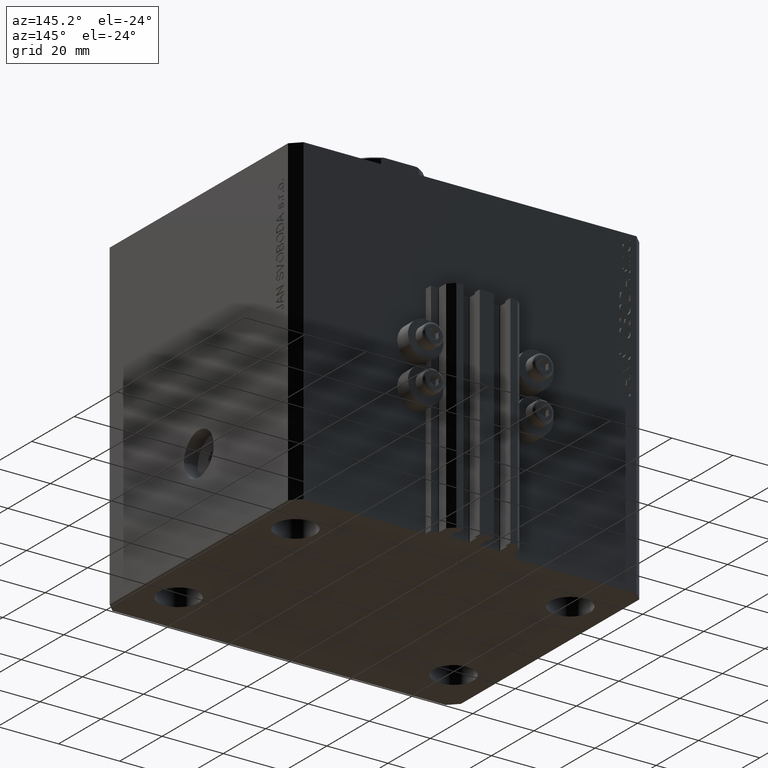
[diagram: clean part render]
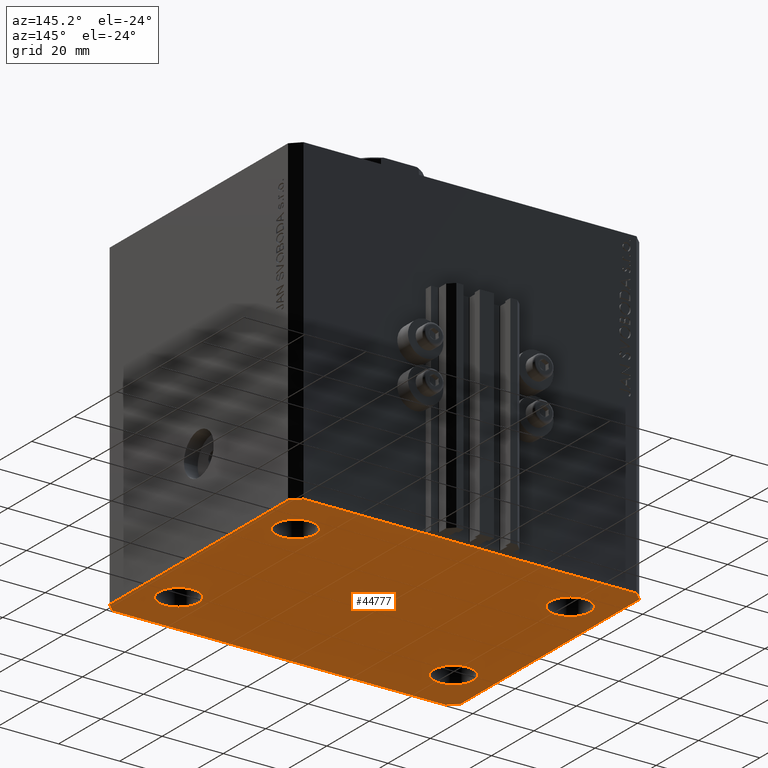
[diagram: same view with one face highlighted and labeled with its STEP entity id]
A machine part, auxiliary view. The second image highlights one B-rep face of the part: STEP entity #44777.
In plain terms, the highlighted planar face has unit normal (0, 0, 1).
Its self-contained STEP definition (entity closure, byte-faithful):
#139 = CARTESIAN_POINT ( 'NONE',  ( -54.49999999999999289, 45.00000000000000000, -105.0000000000000000 ) ) ;
#721 = CARTESIAN_POINT ( 'NONE',  ( 57.50000000000000711, -41.99999999999998579, -105.0000000000000000 ) ) ;
#1498 = CIRCLE ( 'NONE', #16758, 6.499999999999999112 ) ;
#2326 = CARTESIAN_POINT ( 'NONE',  ( 54.50000000000059686, 45.00000000000002842, -105.0000000000000000 ) ) ;
#2540 = FACE_BOUND ( 'NONE', #15166, .T. ) ;
#2654 = CARTESIAN_POINT ( 'NONE',  ( 45.00000000000000000, 27.49999999999999289, -105.0000000000000000 ) ) ;
#3010 = VERTEX_POINT ( 'NONE', #35607 ) ;
#3597 = VERTEX_POINT ( 'NONE', #2326 ) ;
#3755 = ORIENTED_EDGE ( 'NONE', *, *, #19604, .F. ) ;
#3839 = EDGE_CURVE ( 'NONE', #26457, #8488, #38862, .T. ) ;
#4134 = VERTEX_POINT ( 'NONE', #36568 ) ;
#4205 = DIRECTION ( 'NONE',  ( 1.000000000000000000, 0.000000000000000000, 0.000000000000000000 ) ) ;
#4628 = VERTEX_POINT ( 'NONE', #43378 ) ;
#4918 = VECTOR ( 'NONE', #23305, 1000.000000000000000 ) ;
#4966 = LINE ( 'NONE', #30028, #10108 ) ;
#5031 = CARTESIAN_POINT ( 'NONE',  ( -57.50000000000000711, -42.00000000000000711, -105.0000000000000000 ) ) ;
#5095 = VERTEX_POINT ( 'NONE', #11045 ) ;
#5389 = CARTESIAN_POINT ( 'NONE',  ( -45.00000000000000000, 27.49999999999999645, -105.0000000000000000 ) ) ;
#6738 = EDGE_CURVE ( 'NONE', #23377, #4134, #12935, .T. ) ;
#6847 = EDGE_CURVE ( 'NONE', #8488, #26457, #1498, .T. ) ;
#7599 = ORIENTED_EDGE ( 'NONE', *, *, #19133, .F. ) ;
#8311 = ORIENTED_EDGE ( 'NONE', *, *, #6847, .F. ) ;
#8388 = LINE ( 'NONE', #5031, #11547 ) ;
#8488 = VERTEX_POINT ( 'NONE', #14975 ) ;
#8866 = DIRECTION ( 'NONE',  ( 1.000000000000000000, 0.000000000000000000, 0.000000000000000000 ) ) ;
#9210 = CARTESIAN_POINT ( 'NONE',  ( 51.49999999999998579, -27.50000000000000355, -105.0000000000000000 ) ) ;
#9238 = CARTESIAN_POINT ( 'NONE',  ( 57.50000000000055422, 41.99999999999997868, -105.0000000000000000 ) ) ;
#9550 = VECTOR ( 'NONE', #11595, 1000.000000000000000 ) ;
#9944 = DIRECTION ( 'NONE',  ( 1.000000000000000000, 0.000000000000000000, -0.000000000000000000 ) ) ;
#10108 = VECTOR ( 'NONE', #44603, 1000.000000000000000 ) ;
#10902 = CARTESIAN_POINT ( 'NONE',  ( -44.99999999999998579, -27.50000000000000355, -105.0000000000000000 ) ) ;
#11045 = CARTESIAN_POINT ( 'NONE',  ( -51.50000000000000000, 27.49999999999999645, -105.0000000000000000 ) ) ;
#11054 = CARTESIAN_POINT ( 'NONE',  ( -51.49999999999998579, -27.50000000000000355, -105.0000000000000000 ) ) ;
#11364 = VERTEX_POINT ( 'NONE', #11054 ) ;
#11417 = AXIS2_PLACEMENT_3D ( 'NONE', #30822, #30343, #8866 ) ;
#11497 = EDGE_CURVE ( 'NONE', #46080, #4628, #8388, .T. ) ;
#11547 = VECTOR ( 'NONE', #38449, 1000.000000000000114 ) ;
#11595 = DIRECTION ( 'NONE',  ( 6.443258625056715108E-15, 1.000000000000000000, 0.000000000000000000 ) ) ;
#11871 = ORIENTED_EDGE ( 'NONE', *, *, #42402, .F. ) ;
#12317 = DIRECTION ( 'NONE',  ( -0.000000000000000000, -0.000000000000000000, -1.000000000000000000 ) ) ;
#12434 = CIRCLE ( 'NONE', #20053, 6.499999999999999112 ) ;
#12553 = CARTESIAN_POINT ( 'NONE',  ( -45.00000000000000000, 27.49999999999999645, -105.0000000000000000 ) ) ;
#12935 = CIRCLE ( 'NONE', #11417, 6.499999999999999112 ) ;
#13079 = ORIENTED_EDGE ( 'NONE', *, *, #14222, .F. ) ;
#13216 = CARTESIAN_POINT ( 'NONE',  ( -38.50000000000000000, 27.49999999999999645, -105.0000000000000000 ) ) ;
#13285 = FACE_BOUND ( 'NONE', #19360, .T. ) ;
#13388 = CIRCLE ( 'NONE', #42376, 6.499999999999999112 ) ;
#13390 = DIRECTION ( 'NONE',  ( -0.000000000000000000, -0.000000000000000000, -1.000000000000000000 ) ) ;
#13420 = CARTESIAN_POINT ( 'NONE',  ( -57.49999999999998579, 42.00000000000000711, -105.0000000000000000 ) ) ;
#13515 = CARTESIAN_POINT ( 'NONE',  ( 0.000000000000000000, 0.000000000000000000, -105.0000000000000000 ) ) ;
#14222 = EDGE_CURVE ( 'NONE', #35867, #31564, #4966, .T. ) ;
#14805 = CIRCLE ( 'NONE', #20890, 6.499999999999999112 ) ;
#14810 = LINE ( 'NONE', #21020, #23511 ) ;
#14925 = LINE ( 'NONE', #139, #25318 ) ;
#14947 = DIRECTION ( 'NONE',  ( -0.000000000000000000, -0.000000000000000000, -1.000000000000000000 ) ) ;
#14975 = CARTESIAN_POINT ( 'NONE',  ( 51.50000000000000000, 27.49999999999999289, -105.0000000000000000 ) ) ;
#14978 = ORIENTED_EDGE ( 'NONE', *, *, #11497, .F. ) ;
#15166 = EDGE_LOOP ( 'NONE', ( #8311, #21526 ) ) ;
#15441 = ORIENTED_EDGE ( 'NONE', *, *, #18907, .F. ) ;
#16303 = DIRECTION ( 'NONE',  ( 1.000000000000000000, 0.000000000000000000, 0.000000000000000000 ) ) ;
#16551 = CARTESIAN_POINT ( 'NONE',  ( -44.99999999999998579, -27.50000000000000355, -105.0000000000000000 ) ) ;
#16758 = AXIS2_PLACEMENT_3D ( 'NONE', #2654, #43472, #17219 ) ;
#17106 = FACE_OUTER_BOUND ( 'NONE', #29290, .T. ) ;
#17219 = DIRECTION ( 'NONE',  ( 1.000000000000000000, 0.000000000000000000, 0.000000000000000000 ) ) ;
#17336 = FACE_BOUND ( 'NONE', #35480, .T. ) ;
#17630 = VERTEX_POINT ( 'NONE', #13216 ) ;
#17738 = LINE ( 'NONE', #36118, #32529 ) ;
#18058 = CARTESIAN_POINT ( 'NONE',  ( 57.50000000000000711, -41.99999999999998579, -105.0000000000000000 ) ) ;
#18352 = ORIENTED_EDGE ( 'NONE', *, *, #30875, .F. ) ;
#18533 = CARTESIAN_POINT ( 'NONE',  ( 45.00000000000000000, 27.49999999999999289, -105.0000000000000000 ) ) ;
#18730 = CARTESIAN_POINT ( 'NONE',  ( -38.49999999999998579, -27.50000000000000355, -105.0000000000000000 ) ) ;
#18907 = EDGE_CURVE ( 'NONE', #5095, #17630, #14805, .T. ) ;
#19133 = EDGE_CURVE ( 'NONE', #4134, #23377, #39967, .T. ) ;
#19360 = EDGE_LOOP ( 'NONE', ( #27162, #40672 ) ) ;
#19604 = EDGE_CURVE ( 'NONE', #17630, #5095, #12434, .T. ) ;
#19707 = DIRECTION ( 'NONE',  ( -0.000000000000000000, -0.000000000000000000, -1.000000000000000000 ) ) ;
#20053 = AXIS2_PLACEMENT_3D ( 'NONE', #12553, #12317, #38570 ) ;
#20890 = AXIS2_PLACEMENT_3D ( 'NONE', #5389, #19707, #30446 ) ;
#21020 = CARTESIAN_POINT ( 'NONE',  ( -54.50000000000000711, -45.00000000000000000, -105.0000000000000000 ) ) ;
#21390 = DIRECTION ( 'NONE',  ( -0.7071067811865483499, -0.7071067811865466846, 0.000000000000000000 ) ) ;
#21526 = ORIENTED_EDGE ( 'NONE', *, *, #3839, .F. ) ;
#21749 = DIRECTION ( 'NONE',  ( 1.000000000000000000, 1.273191542001326317E-16, 0.000000000000000000 ) ) ;
#21971 = AXIS2_PLACEMENT_3D ( 'NONE', #13515, #28063, #9944 ) ;
#22106 = DIRECTION ( 'NONE',  ( -0.000000000000000000, -0.000000000000000000, -1.000000000000000000 ) ) ;
#23305 = DIRECTION ( 'NONE',  ( -0.7071067811865369146, 0.7071067811865581199, 0.000000000000000000 ) ) ;
#23377 = VERTEX_POINT ( 'NONE', #9210 ) ;
#23511 = VECTOR ( 'NONE', #21749, 1000.000000000000000 ) ;
#23587 = EDGE_CURVE ( 'NONE', #27772, #11364, #13388, .T. ) ;
#24122 = CARTESIAN_POINT ( 'NONE',  ( 44.99999999999998579, -27.50000000000000355, -105.0000000000000000 ) ) ;
#24723 = EDGE_LOOP ( 'NONE', ( #3755, #15441 ) ) ;
#25226 = EDGE_CURVE ( 'NONE', #11364, #27772, #44695, .T. ) ;
#25318 = VECTOR ( 'NONE', #21390, 1000.000000000000000 ) ;
#26457 = VERTEX_POINT ( 'NONE', #38559 ) ;
#26562 = ORIENTED_EDGE ( 'NONE', *, *, #35735, .F. ) ;
#26717 = EDGE_CURVE ( 'NONE', #38606, #46080, #43805, .T. ) ;
#27162 = ORIENTED_EDGE ( 'NONE', *, *, #23587, .F. ) ;
#27274 = DIRECTION ( 'NONE',  ( -0.000000000000000000, -0.000000000000000000, -1.000000000000000000 ) ) ;
#27772 = VERTEX_POINT ( 'NONE', #18730 ) ;
#27832 = FACE_BOUND ( 'NONE', #24723, .T. ) ;
#28063 = DIRECTION ( 'NONE',  ( 0.000000000000000000, 0.000000000000000000, 1.000000000000000000 ) ) ;
#28445 = EDGE_CURVE ( 'NONE', #3010, #38606, #14925, .T. ) ;
#29290 = EDGE_LOOP ( 'NONE', ( #26562, #18352, #43423, #13079, #11871, #14978, #41542, #37554 ) ) ;
#29873 = CARTESIAN_POINT ( 'NONE',  ( 54.50000000000000711, -44.99999999999998579, -105.0000000000000000 ) ) ;
#30028 = CARTESIAN_POINT ( 'NONE',  ( 54.50000000000000711, -44.99999999999998579, -105.0000000000000000 ) ) ;
#30343 = DIRECTION ( 'NONE',  ( -0.000000000000000000, -0.000000000000000000, -1.000000000000000000 ) ) ;
#30446 = DIRECTION ( 'NONE',  ( 1.000000000000000000, 0.000000000000000000, 0.000000000000000000 ) ) ;
#30822 = CARTESIAN_POINT ( 'NONE',  ( 44.99999999999998579, -27.50000000000000355, -105.0000000000000000 ) ) ;
#30875 = EDGE_CURVE ( 'NONE', #36471, #3597, #30941, .T. ) ;
#30941 = LINE ( 'NONE', #9238, #4918 ) ;
#31296 = DIRECTION ( 'NONE',  ( 1.000000000000000000, 0.000000000000000000, 0.000000000000000000 ) ) ;
#31564 = VERTEX_POINT ( 'NONE', #721 ) ;
#31655 = PLANE ( 'NONE',  #21971 ) ;
#32294 = DIRECTION ( 'NONE',  ( -1.000000000000000000, -2.546383084002638829E-16, 0.000000000000000000 ) ) ;
#32453 = CARTESIAN_POINT ( 'NONE',  ( -57.50000000000000711, -42.00000000000000711, -105.0000000000000000 ) ) ;
#32529 = VECTOR ( 'NONE', #32294, 1000.000000000000000 ) ;
#33093 = EDGE_CURVE ( 'NONE', #31564, #36471, #37123, .T. ) ;
#34110 = ORIENTED_EDGE ( 'NONE', *, *, #6738, .F. ) ;
#35480 = EDGE_LOOP ( 'NONE', ( #34110, #7599 ) ) ;
#35607 = CARTESIAN_POINT ( 'NONE',  ( -54.49999999999999289, 45.00000000000000000, -105.0000000000000000 ) ) ;
#35735 = EDGE_CURVE ( 'NONE', #3597, #3010, #17738, .T. ) ;
#35848 = AXIS2_PLACEMENT_3D ( 'NONE', #18533, #14947, #4205 ) ;
#35867 = VERTEX_POINT ( 'NONE', #29873 ) ;
#36118 = CARTESIAN_POINT ( 'NONE',  ( 54.50000000000059686, 45.00000000000002842, -105.0000000000000000 ) ) ;
#36471 = VERTEX_POINT ( 'NONE', #45212 ) ;
#36568 = CARTESIAN_POINT ( 'NONE',  ( 38.49999999999998579, -27.50000000000000355, -105.0000000000000000 ) ) ;
#36867 = DIRECTION ( 'NONE',  ( -2.478176394252581141E-16, -1.000000000000000000, 0.000000000000000000 ) ) ;
#37096 = CARTESIAN_POINT ( 'NONE',  ( -57.49999999999998579, 42.00000000000000711, -105.0000000000000000 ) ) ;
#37123 = LINE ( 'NONE', #18058, #9550 ) ;
#37554 = ORIENTED_EDGE ( 'NONE', *, *, #28445, .F. ) ;
#37868 = VECTOR ( 'NONE', #36867, 1000.000000000000000 ) ;
#38449 = DIRECTION ( 'NONE',  ( 0.7071067811865491270, -0.7071067811865459074, 0.000000000000000000 ) ) ;
#38559 = CARTESIAN_POINT ( 'NONE',  ( 38.50000000000000000, 27.49999999999999289, -105.0000000000000000 ) ) ;
#38570 = DIRECTION ( 'NONE',  ( 1.000000000000000000, 0.000000000000000000, 0.000000000000000000 ) ) ;
#38606 = VERTEX_POINT ( 'NONE', #13420 ) ;
#38862 = CIRCLE ( 'NONE', #35848, 6.499999999999999112 ) ;
#39350 = AXIS2_PLACEMENT_3D ( 'NONE', #10902, #22106, #43356 ) ;
#39967 = CIRCLE ( 'NONE', #42261, 6.499999999999999112 ) ;
#40672 = ORIENTED_EDGE ( 'NONE', *, *, #25226, .F. ) ;
#41542 = ORIENTED_EDGE ( 'NONE', *, *, #26717, .F. ) ;
#42261 = AXIS2_PLACEMENT_3D ( 'NONE', #24122, #13390, #31296 ) ;
#42376 = AXIS2_PLACEMENT_3D ( 'NONE', #16551, #27274, #16303 ) ;
#42402 = EDGE_CURVE ( 'NONE', #4628, #35867, #14810, .T. ) ;
#43356 = DIRECTION ( 'NONE',  ( 1.000000000000000000, 0.000000000000000000, 0.000000000000000000 ) ) ;
#43378 = CARTESIAN_POINT ( 'NONE',  ( -54.50000000000000711, -45.00000000000000000, -105.0000000000000000 ) ) ;
#43423 = ORIENTED_EDGE ( 'NONE', *, *, #33093, .F. ) ;
#43472 = DIRECTION ( 'NONE',  ( -0.000000000000000000, -0.000000000000000000, -1.000000000000000000 ) ) ;
#43805 = LINE ( 'NONE', #37096, #37868 ) ;
#44603 = DIRECTION ( 'NONE',  ( 0.7071067811865483499, 0.7071067811865466846, 0.000000000000000000 ) ) ;
#44695 = CIRCLE ( 'NONE', #39350, 6.499999999999999112 ) ;
#44777 = ADVANCED_FACE ( 'NONE', ( #13285, #17336, #2540, #27832, #17106 ), #31655, .F. ) ;
#45212 = CARTESIAN_POINT ( 'NONE',  ( 57.50000000000055422, 41.99999999999997868, -105.0000000000000000 ) ) ;
#46080 = VERTEX_POINT ( 'NONE', #32453 ) ;